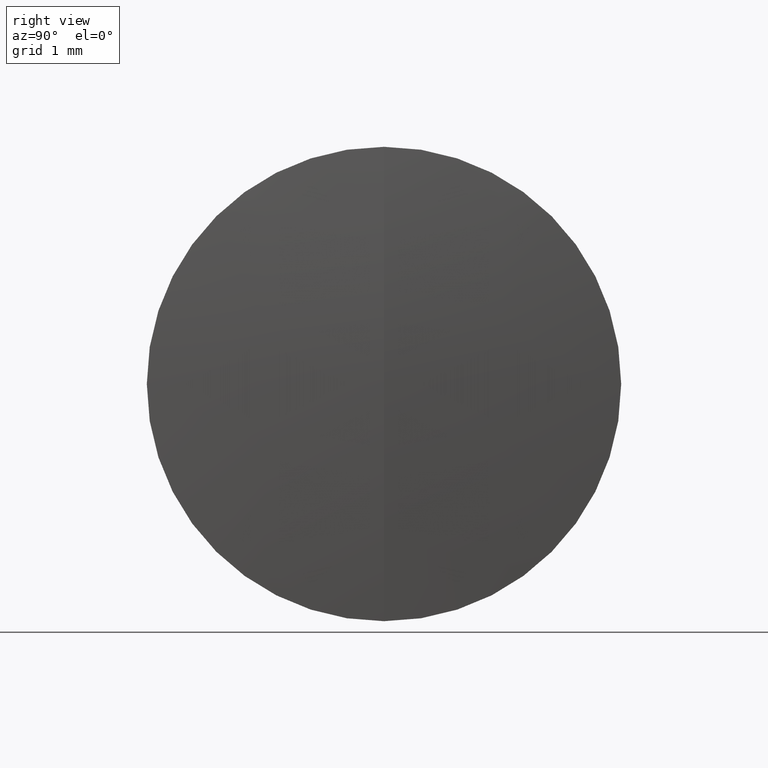
[diagram: clean part render]
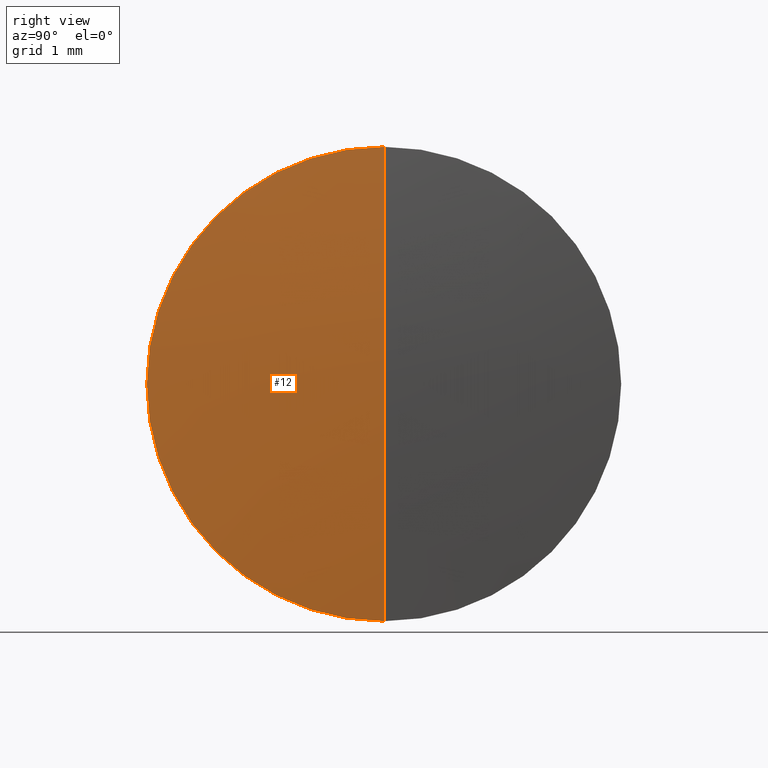
[diagram: same view with one face highlighted and labeled with its STEP entity id]
A machine part, right view. The second image highlights one B-rep face of the part: STEP entity #12.
In plain terms, the highlighted spherical surface has radius 32.9 mm.
Its self-contained STEP definition (entity closure, byte-faithful):
#12 = ADVANCED_FACE ( 'NONE', ( #153 ), #260, .T. ) ;
#25 = EDGE_CURVE ( 'NONE', #307, #46, #292, .T. ) ;
#32 = ORIENTED_EDGE ( 'NONE', *, *, #275, .F. ) ;
#35 = CARTESIAN_POINT ( 'NONE',  ( 264.9271534009465100, 3.888253587292847600E-016, -3.175000000000000700 ) ) ;
#46 = VERTEX_POINT ( 'NONE', #35 ) ;
#57 = CARTESIAN_POINT ( 'NONE',  ( 232.1807127546716700, 0.0000000000000000000, 0.0000000000000000000 ) ) ;
#70 = CARTESIAN_POINT ( 'NONE',  ( 264.9271534009465100, 0.0000000000000000000, 0.0000000000000000000 ) ) ;
#94 = EDGE_LOOP ( 'NONE', ( #211, #117, #32 ) ) ;
#99 = AXIS2_PLACEMENT_3D ( 'NONE', #165, #314, #271 ) ;
#116 = DIRECTION ( 'NONE',  ( -0.0000000000000000000, 1.000000000000000000, 1.224646799147353200E-016 ) ) ;
#117 = ORIENTED_EDGE ( 'NONE', *, *, #150, .T. ) ;
#131 = CARTESIAN_POINT ( 'NONE',  ( 264.9271534009465100, 0.0000000000000000000, 3.175000000000000700 ) ) ;
#134 = DIRECTION ( 'NONE',  ( 0.0000000000000000000, -1.000000000000000000, 0.0000000000000000000 ) ) ;
#150 = EDGE_CURVE ( 'NONE', #307, #210, #283, .T. ) ;
#153 = FACE_OUTER_BOUND ( 'NONE', #94, .T. ) ;
#165 = CARTESIAN_POINT ( 'NONE',  ( 232.1807127546716700, 0.0000000000000000000, 0.0000000000000000000 ) ) ;
#181 = AXIS2_PLACEMENT_3D ( 'NONE', #57, #134, #289 ) ;
#191 = DIRECTION ( 'NONE',  ( -1.000000000000000000, -0.0000000000000000000, -0.0000000000000000000 ) ) ;
#207 = DIRECTION ( 'NONE',  ( 0.0000000000000000000, 0.0000000000000000000, 1.000000000000000000 ) ) ;
#210 = VERTEX_POINT ( 'NONE', #131 ) ;
#211 = ORIENTED_EDGE ( 'NONE', *, *, #25, .F. ) ;
#223 = AXIS2_PLACEMENT_3D ( 'NONE', #296, #116, #270 ) ;
#232 = CARTESIAN_POINT ( 'NONE',  ( 265.0807127546717100, 0.0000000000000000000, 2.014543984597397600E-015 ) ) ;
#256 = CIRCLE ( 'NONE', #338, 3.175000000000000700 ) ;
#260 = SPHERICAL_SURFACE ( 'NONE', #99, 32.90000000000002700 ) ;
#270 = DIRECTION ( 'NONE',  ( 0.0000000000000000000, -1.224646799147353200E-016, 1.000000000000000000 ) ) ;
#271 = DIRECTION ( 'NONE',  ( 0.0000000000000000000, 0.0000000000000000000, 1.000000000000000000 ) ) ;
#275 = EDGE_CURVE ( 'NONE', #46, #210, #256, .T. ) ;
#283 = CIRCLE ( 'NONE', #181, 32.90000000000002700 ) ;
#289 = DIRECTION ( 'NONE',  ( 0.0000000000000000000, 0.0000000000000000000, -1.000000000000000000 ) ) ;
#292 = CIRCLE ( 'NONE', #223, 32.90000000000002700 ) ;
#296 = CARTESIAN_POINT ( 'NONE',  ( 232.1807127546716700, 0.0000000000000000000, 0.0000000000000000000 ) ) ;
#307 = VERTEX_POINT ( 'NONE', #232 ) ;
#314 = DIRECTION ( 'NONE',  ( 0.0000000000000000000, 1.000000000000000000, 0.0000000000000000000 ) ) ;
#338 = AXIS2_PLACEMENT_3D ( 'NONE', #70, #191, #207 ) ;